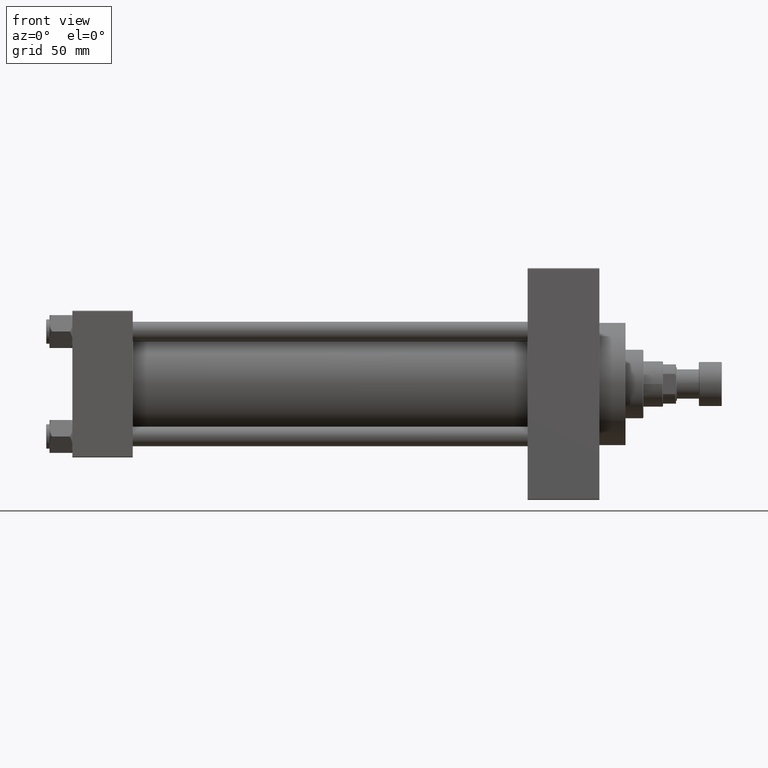
[diagram: clean part render]
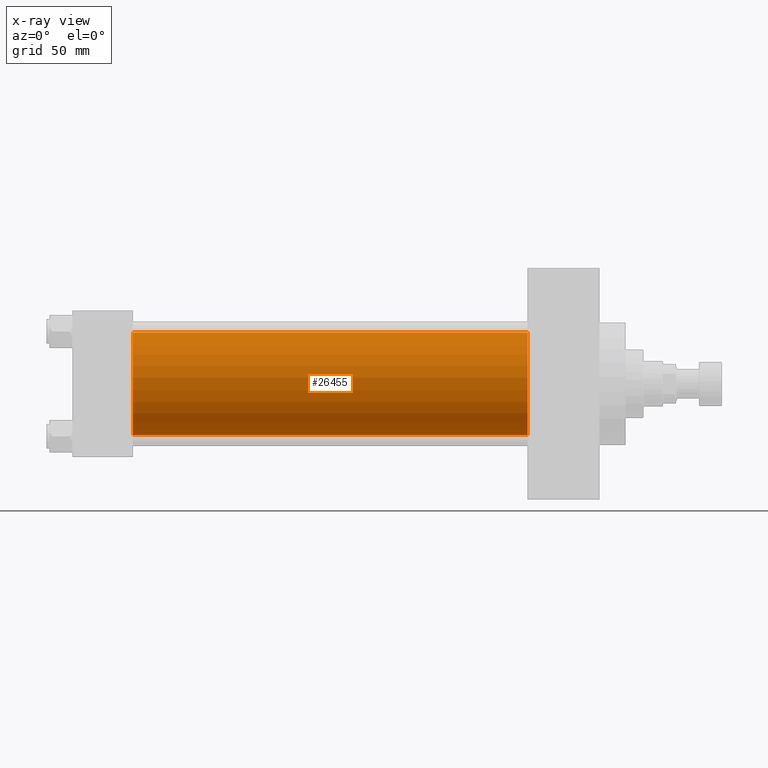
[diagram: x-ray — body ghosted, one internal face saturated and labeled with its STEP entity id]
A machine part, front view, then the same camera in x-ray: the body is ghosted and one INTERNAL B-rep face — a face not visible from any outside direction — is saturated and labeled: STEP entity #26455.
In plain terms, the highlighted cylindrical surface (partial cylindrical patch) has radius 31.5 mm, axis along (-1, -0, -0).
Its self-contained STEP definition (entity closure, byte-faithful):
#284 = VECTOR ( 'NONE', #12129, 1000.000000000000000 ) ;
#447 = DIRECTION ( 'NONE',  ( 0.000000000000000000, 0.000000000000000000, 1.000000000000000000 ) ) ;
#3882 = DIRECTION ( 'NONE',  ( -1.000000000000000000, -0.000000000000000000, -0.000000000000000000 ) ) ;
#4625 = CARTESIAN_POINT ( 'NONE',  ( 278.9999999999999432, -2.602085213965210642E-15, 31.50000000000000000 ) ) ;
#6723 = VECTOR ( 'NONE', #3882, 1000.000000000000000 ) ;
#8017 = FACE_OUTER_BOUND ( 'NONE', #47927, .T. ) ;
#8106 = CARTESIAN_POINT ( 'NONE',  ( 278.9999999999999432, 1.255552203348951850E-15, -31.50000000000000000 ) ) ;
#8141 = CARTESIAN_POINT ( 'NONE',  ( 37.00000000000000000, 1.255552203348951850E-15, -31.50000000000000000 ) ) ;
#8782 = ORIENTED_EDGE ( 'NONE', *, *, #24632, .T. ) ;
#12129 = DIRECTION ( 'NONE',  ( -1.000000000000000000, -0.000000000000000000, -0.000000000000000000 ) ) ;
#16921 = AXIS2_PLACEMENT_3D ( 'NONE', #38693, #19595, #447 ) ;
#18930 = DIRECTION ( 'NONE',  ( 0.000000000000000000, 0.000000000000000000, -1.000000000000000000 ) ) ;
#19232 = AXIS2_PLACEMENT_3D ( 'NONE', #49605, #49366, #18930 ) ;
#19595 = DIRECTION ( 'NONE',  ( -1.000000000000000000, -0.000000000000000000, -0.000000000000000000 ) ) ;
#20159 = EDGE_CURVE ( 'NONE', #41242, #34101, #31281, .T. ) ;
#23368 = CYLINDRICAL_SURFACE ( 'NONE', #16921, 31.50000000000000000 ) ;
#23503 = VERTEX_POINT ( 'NONE', #25022 ) ;
#23634 = ORIENTED_EDGE ( 'NONE', *, *, #33750, .T. ) ;
#24616 = CARTESIAN_POINT ( 'NONE',  ( 37.00000000000000000, -2.602085213965210642E-15, 31.50000000000000000 ) ) ;
#24632 = EDGE_CURVE ( 'NONE', #36178, #23503, #48947, .T. ) ;
#24975 = DIRECTION ( 'NONE',  ( 0.000000000000000000, 0.000000000000000000, -1.000000000000000000 ) ) ;
#25022 = CARTESIAN_POINT ( 'NONE',  ( 278.9999999999999432, 1.255552203348951850E-15, -31.50000000000000000 ) ) ;
#25908 = CARTESIAN_POINT ( 'NONE',  ( 278.9999999999999432, -2.602085213965210642E-15, 31.50000000000000000 ) ) ;
#26455 = ADVANCED_FACE ( 'NONE', ( #8017 ), #23368, .F. ) ;
#31281 = CIRCLE ( 'NONE', #19232, 31.50000000000000000 ) ;
#33750 = EDGE_CURVE ( 'NONE', #23503, #34101, #45572, .T. ) ;
#34101 = VERTEX_POINT ( 'NONE', #8141 ) ;
#36083 = EDGE_CURVE ( 'NONE', #36178, #41242, #38576, .T. ) ;
#36178 = VERTEX_POINT ( 'NONE', #25908 ) ;
#36533 = CARTESIAN_POINT ( 'NONE',  ( 278.9999999999999432, -2.602085213965210642E-15, 0.000000000000000000 ) ) ;
#36780 = DIRECTION ( 'NONE',  ( 1.000000000000000000, 0.000000000000000000, 0.000000000000000000 ) ) ;
#38576 = LINE ( 'NONE', #4625, #6723 ) ;
#38693 = CARTESIAN_POINT ( 'NONE',  ( 278.9999999999999432, -2.602085213965210642E-15, 0.000000000000000000 ) ) ;
#38963 = ORIENTED_EDGE ( 'NONE', *, *, #20159, .F. ) ;
#40326 = ORIENTED_EDGE ( 'NONE', *, *, #36083, .F. ) ;
#41242 = VERTEX_POINT ( 'NONE', #24616 ) ;
#45572 = LINE ( 'NONE', #8106, #284 ) ;
#47927 = EDGE_LOOP ( 'NONE', ( #8782, #23634, #38963, #40326 ) ) ;
#48947 = CIRCLE ( 'NONE', #49775, 31.50000000000000000 ) ;
#49366 = DIRECTION ( 'NONE',  ( 1.000000000000000000, 0.000000000000000000, 0.000000000000000000 ) ) ;
#49605 = CARTESIAN_POINT ( 'NONE',  ( 37.00000000000000000, -2.602085213965210642E-15, 0.000000000000000000 ) ) ;
#49775 = AXIS2_PLACEMENT_3D ( 'NONE', #36533, #36780, #24975 ) ;